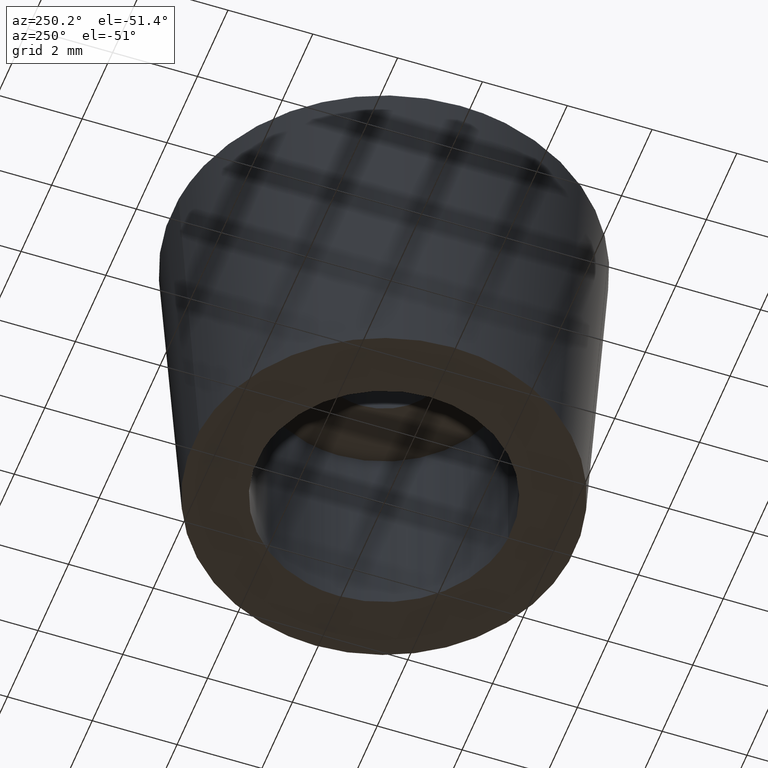
[diagram: clean part render]
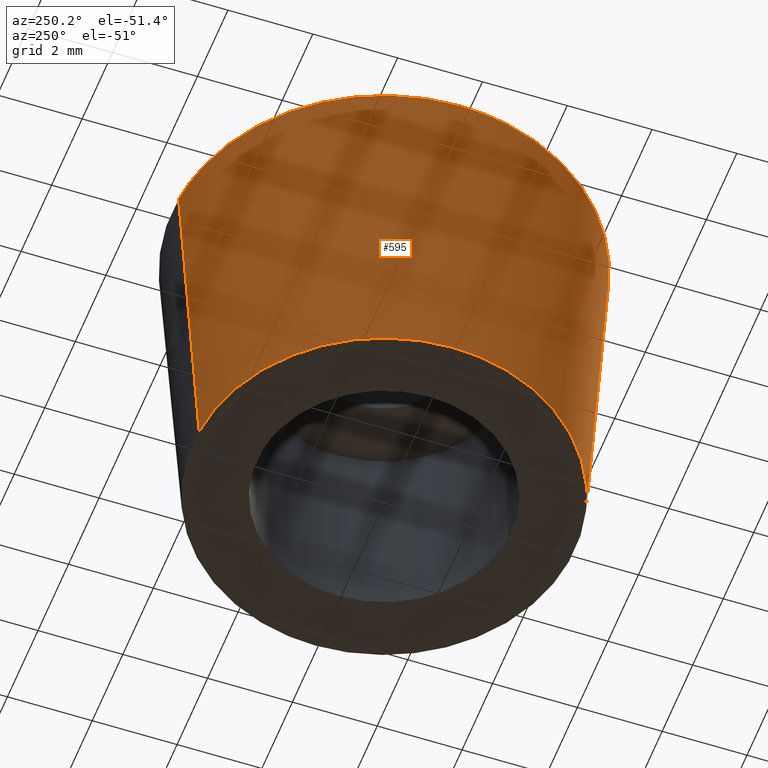
[diagram: same view with one face highlighted and labeled with its STEP entity id]
A machine part, auxiliary view. The second image highlights one B-rep face of the part: STEP entity #595.
In plain terms, the highlighted face is a freeform B-spline surface patch.
Its self-contained STEP definition (entity closure, byte-faithful):
#497=CARTESIAN_POINT('',(-0.352085192078707,4.473666535127410,-0.200000000000000));
#498=CARTESIAN_POINT('',(-4.825751727206116,4.121581343048703,-0.200000000000000));
#499=CARTESIAN_POINT('',(-4.473666535127410,-0.352085192078707,-0.200000000000000));
#500=CARTESIAN_POINT('',(-4.121581343048703,-4.825751727206116,-0.200000000000000));
#501=CARTESIAN_POINT('',(0.352085192078707,-4.473666535127410,-0.200000000000000));
#502=CARTESIAN_POINT('',(-0.393300735803241,4.997359672004095,8.205000000000000));
#503=CARTESIAN_POINT('',(-5.390660407807336,4.604058936200854,8.205000000000000));
#504=CARTESIAN_POINT('',(-4.997359672004095,-0.393300735803241,8.205000000000000));
#505=CARTESIAN_POINT('',(-4.604058936200854,-5.390660407807336,8.205000000000000));
#506=CARTESIAN_POINT('',(0.393300735803241,-4.997359672004095,8.205000000000000));
#514=(BOUNDED_SURFACE()B_SPLINE_SURFACE(2,1,((#497,#502),(#498,#503),(#499,#504),(#500,#505),(#501,#506)),.UNSPECIFIED.,.F.,.F.,.U.)B_SPLINE_SURFACE_WITH_KNOTS((3,2,3),(2,2),(0.0,8.305499692533521,16.610999385067039),(0.0,8.421400015594573),.UNSPECIFIED.)GEOMETRIC_REPRESENTATION_ITEM()RATIONAL_B_SPLINE_SURFACE(((1.0,1.0),(0.707106781186548,0.707106781186548),(1.0,1.0),(0.707106781186548,0.707106781186548),(1.0,1.0)))REPRESENTATION_ITEM('')SURFACE());
#515=CARTESIAN_POINT('',(-4.500000000000000,0.0,0.0));
#516=VERTEX_POINT('',#515);
#517=CARTESIAN_POINT('',(-0.353062357360180,4.486128245514117,-0.000000598405103));
#518=VERTEX_POINT('',#517);
#519=CARTESIAN_POINT('',(-4.500000000000000,0.0,0.0));
#520=CARTESIAN_POINT('',(-4.500000000000000,4.159760533424683,0.0));
#521=CARTESIAN_POINT('',(-0.353062357360180,4.486128245514117,-0.000000598405103));
#529=(BOUNDED_CURVE()B_SPLINE_CURVE(2,(#519,#520,#521),.UNSPECIFIED.,.F.,.U.)B_SPLINE_CURVE_WITH_KNOTS((3,3),(0.0,0.236331437068440),.UNSPECIFIED.)CURVE()GEOMETRIC_REPRESENTATION_ITEM()RATIONAL_B_SPLINE_CURVE((1.0,0.723120498760862,0.969723640902832))REPRESENTATION_ITEM(''));
#530=EDGE_CURVE('',#516,#518,#529,.T.);
#531=ORIENTED_EDGE('',*,*,#530,.F.);
#532=CARTESIAN_POINT('',(0.353062357360179,-4.486128245514117,-0.000000598405103));
#533=VERTEX_POINT('',#532);
#534=CARTESIAN_POINT('',(0.353062357360179,-4.486128245514117,-0.000000598405103));
#535=CARTESIAN_POINT('',(0.176803688009538,-4.500000000000000,0.0));
#536=CARTESIAN_POINT('',(0.0,-4.500000000000000,0.0));
#537=CARTESIAN_POINT('',(-4.500000000000000,-4.500000000000000,0.0));
#538=CARTESIAN_POINT('',(-4.500000000000000,0.0,0.0));
#546=(BOUNDED_CURVE()B_SPLINE_CURVE(2,(#534,#535,#536,#537,#538),.UNSPECIFIED.,.F.,.U.)B_SPLINE_CURVE_WITH_KNOTS((3,2,3),(0.736331437068440,0.750000000000000,1.0),.UNSPECIFIED.)CURVE()GEOMETRIC_REPRESENTATION_ITEM()RATIONAL_B_SPLINE_CURVE((0.969723640902832,0.983986282425685,1.0,0.707106781186547,1.0))REPRESENTATION_ITEM(''));
#547=EDGE_CURVE('',#533,#516,#546,.T.);
#548=ORIENTED_EDGE('',*,*,#547,.F.);
#549=CARTESIAN_POINT('',(0.392292609547285,-4.984586864029133,7.999999514504765));
#550=VERTEX_POINT('',#549);
#551=CARTESIAN_POINT('',(0.353062357360179,-4.486128245514117,-0.000000598405103));
#552=CARTESIAN_POINT('',(0.392292609547285,-4.984586864029133,7.999999514504765));
#553=QUASI_UNIFORM_CURVE('',1,(#551,#552),.UNSPECIFIED.,.F.,.U.);
#554=EDGE_CURVE('',#533,#550,#553,.T.);
#555=ORIENTED_EDGE('',*,*,#554,.T.);
#556=CARTESIAN_POINT('',(-5.0,0.0,8.0));
#557=VERTEX_POINT('',#556);
#558=CARTESIAN_POINT('',(0.392292609547285,-4.984586864029133,7.999999514504765));
#559=CARTESIAN_POINT('',(0.196449095031060,-5.0,8.0));
#560=CARTESIAN_POINT('',(0.0,-5.0,8.0));
#561=CARTESIAN_POINT('',(-5.000000000000001,-5.000000000000001,8.0));
#562=CARTESIAN_POINT('',(-5.0,0.0,8.0));
#570=(BOUNDED_CURVE()B_SPLINE_CURVE(2,(#558,#559,#560,#561,#562),.UNSPECIFIED.,.F.,.U.)B_SPLINE_CURVE_WITH_KNOTS((3,2,3),(0.736331399221592,0.750000000000000,1.0),.UNSPECIFIED.)CURVE()GEOMETRIC_REPRESENTATION_ITEM()RATIONAL_B_SPLINE_CURVE((0.969723561919263,0.983986238085344,1.0,0.707106781186548,1.0))REPRESENTATION_ITEM(''));
#571=EDGE_CURVE('',#550,#557,#570,.T.);
#572=ORIENTED_EDGE('',*,*,#571,.T.);
#573=CARTESIAN_POINT('',(-0.392292609547286,4.984586864029133,7.999999514504763));
#574=VERTEX_POINT('',#573);
#575=CARTESIAN_POINT('',(-5.0,0.0,8.0));
#576=CARTESIAN_POINT('',(-5.0,4.621955124665978,8.0));
#577=CARTESIAN_POINT('',(-0.392292609547286,4.984586864029133,7.999999514504763));
#585=(BOUNDED_CURVE()B_SPLINE_CURVE(2,(#575,#576,#577),.UNSPECIFIED.,.F.,.U.)B_SPLINE_CURVE_WITH_KNOTS((3,3),(0.0,0.236331399221592),.UNSPECIFIED.)CURVE()GEOMETRIC_REPRESENTATION_ITEM()RATIONAL_B_SPLINE_CURVE((1.0,0.723120543101204,0.969723561919263))REPRESENTATION_ITEM(''));
#586=EDGE_CURVE('',#557,#574,#585,.T.);
#587=ORIENTED_EDGE('',*,*,#586,.T.);
#588=CARTESIAN_POINT('',(-0.353062357360180,4.486128245514117,-0.000000598405103));
#589=CARTESIAN_POINT('',(-0.392292609547286,4.984586864029133,7.999999514504763));
#590=QUASI_UNIFORM_CURVE('',1,(#588,#589),.UNSPECIFIED.,.F.,.U.);
#591=EDGE_CURVE('',#518,#574,#590,.T.);
#592=ORIENTED_EDGE('',*,*,#591,.F.);
#593=EDGE_LOOP('',(#531,#548,#555,#572,#587,#592));
#594=FACE_OUTER_BOUND('',#593,.T.);
#595=ADVANCED_FACE('',(#594),#514,.T.);